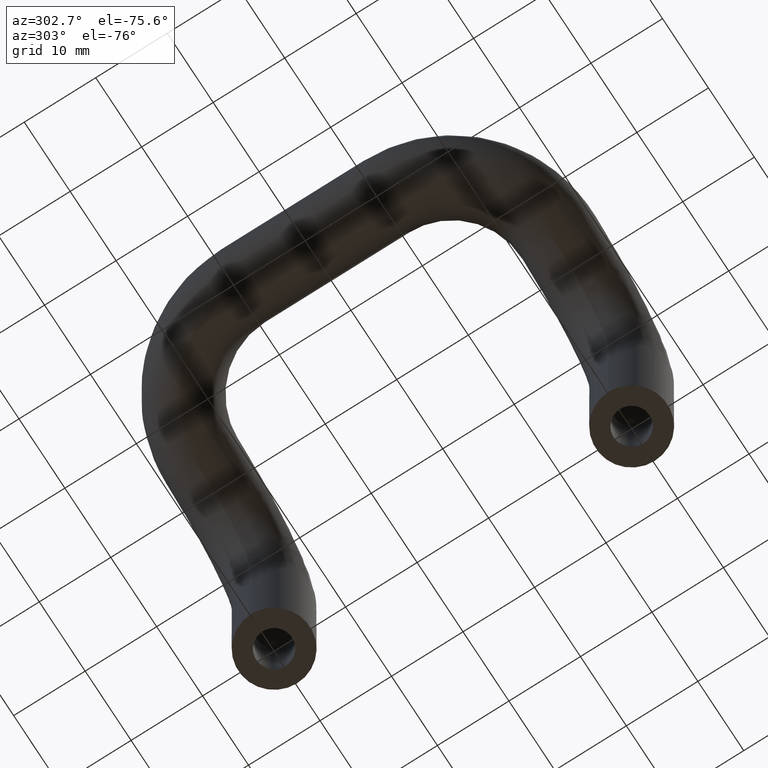
[diagram: clean part render]
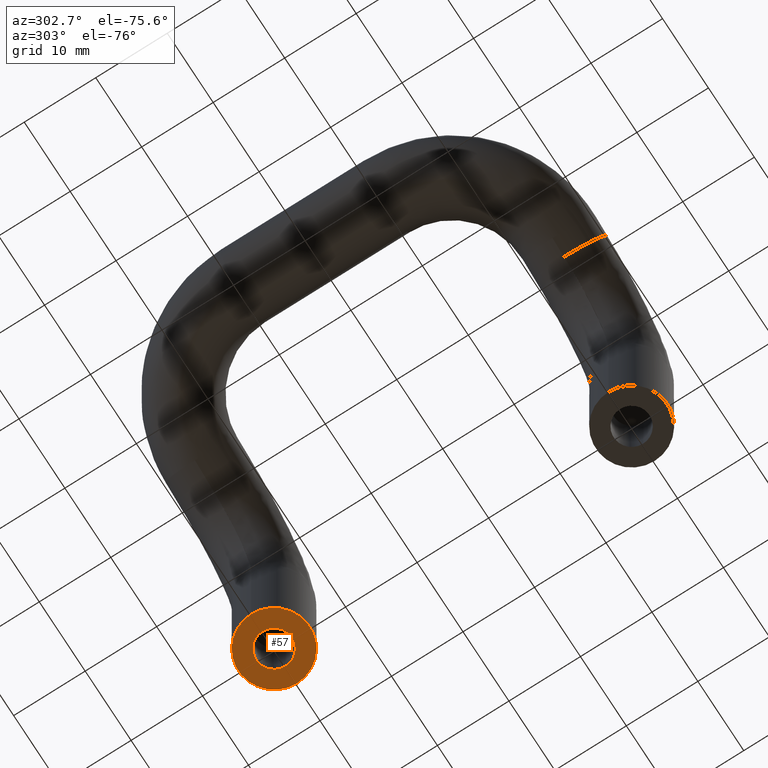
[diagram: same view with one face highlighted and labeled with its STEP entity id]
A machine part, auxiliary view. The second image highlights one B-rep face of the part: STEP entity #57.
In plain terms, the highlighted planar face has unit normal (-0, 0, -1).
Its self-contained STEP definition (entity closure, byte-faithful):
#57=ADVANCED_FACE('',(#250,#251),#249,.T.);
#249=PLANE('',#837);
#250=FACE_OUTER_BOUND('',#838,.T.);
#251=FACE_BOUND('',#839,.T.);
#834=CARTESIAN_POINT('',(1.15000000000E+01,3.96076951546E+01,0.00000000000E+00));
#835=DIRECTION('',(-0.00000000000E+00,0.00000000000E+00,-1.00000000000E+00));
#836=DIRECTION('',(-1.00000000000E+00,-0.00000000000E+00,0.00000000000E+00));
#837=AXIS2_PLACEMENT_3D('',#834,#835,#836);
#838=EDGE_LOOP('',(#1146,#1147));
#839=EDGE_LOOP('',(#1148,#1149));
#1146=ORIENTED_EDGE('',*,*,#1313,.F.);
#1147=ORIENTED_EDGE('',*,*,#1314,.F.);
#1148=ORIENTED_EDGE('',*,*,#1315,.T.);
#1149=ORIENTED_EDGE('',*,*,#1316,.T.);
#1313=EDGE_CURVE('',#1698,#1699,#1700,.T.);
#1314=EDGE_CURVE('',#1699,#1698,#1706,.T.);
#1315=EDGE_CURVE('',#1712,#1713,#1714,.T.);
#1316=EDGE_CURVE('',#1713,#1712,#1720,.T.);
#1698=VERTEX_POINT('',#2274);
#1699=VERTEX_POINT('',#2275);
#1700=CIRCLE('',#2279,5.00000000000E+00);
#1706=CIRCLE('',#2283,5.00000000000E+00);
#1712=VERTEX_POINT('',#2284);
#1713=VERTEX_POINT('',#2285);
#1714=CIRCLE('',#2289,2.50000000000E+00);
#1720=CIRCLE('',#2293,2.50000000000E+00);
#2274=CARTESIAN_POINT('',(5.00000000000E+00,5.00000000000E+01,0.00000000000E+00));
#2275=CARTESIAN_POINT('',(-5.00000000000E+00,5.00000000000E+01,0.00000000000E+00));
#2276=CARTESIAN_POINT('',(0.00000000000E+00,5.00000000000E+01,0.00000000000E+00));
#2277=DIRECTION('',(0.00000000000E+00,0.00000000000E+00,1.00000000000E+00));
#2278=DIRECTION('',(-1.00000000000E+00,1.22460635382E-16,0.00000000000E+00));
#2279=AXIS2_PLACEMENT_3D('',#2276,#2277,#2278);
#2280=CARTESIAN_POINT('',(0.00000000000E+00,5.00000000000E+01,0.00000000000E+00));
#2281=DIRECTION('',(0.00000000000E+00,0.00000000000E+00,1.00000000000E+00));
#2282=DIRECTION('',(-1.00000000000E+00,1.22460635382E-16,0.00000000000E+00));
#2283=AXIS2_PLACEMENT_3D('',#2280,#2281,#2282);
#2284=CARTESIAN_POINT('',(-2.50000000000E+00,5.00000000000E+01,-4.07211626342E-12));
#2285=CARTESIAN_POINT('',(2.50000000000E+00,5.00000000000E+01,-4.07211626342E-12));
#2286=CARTESIAN_POINT('',(0.00000000000E+00,5.00000000000E+01,-4.07211626342E-12));
#2287=DIRECTION('',(0.00000000000E+00,0.00000000000E+00,1.00000000000E+00));
#2288=DIRECTION('',(-1.00000000000E+00,1.22460635382E-16,0.00000000000E+00));
#2289=AXIS2_PLACEMENT_3D('',#2286,#2287,#2288);
#2290=CARTESIAN_POINT('',(0.00000000000E+00,5.00000000000E+01,-4.07211626342E-12));
#2291=DIRECTION('',(0.00000000000E+00,0.00000000000E+00,1.00000000000E+00));
#2292=DIRECTION('',(-1.00000000000E+00,1.22460635382E-16,0.00000000000E+00));
#2293=AXIS2_PLACEMENT_3D('',#2290,#2291,#2292);